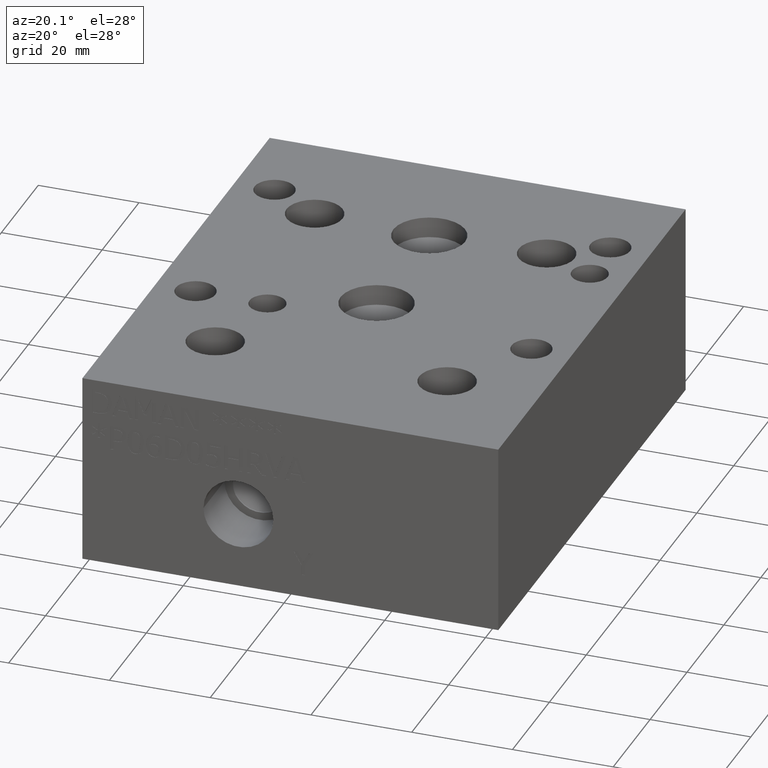
[diagram: clean part render]
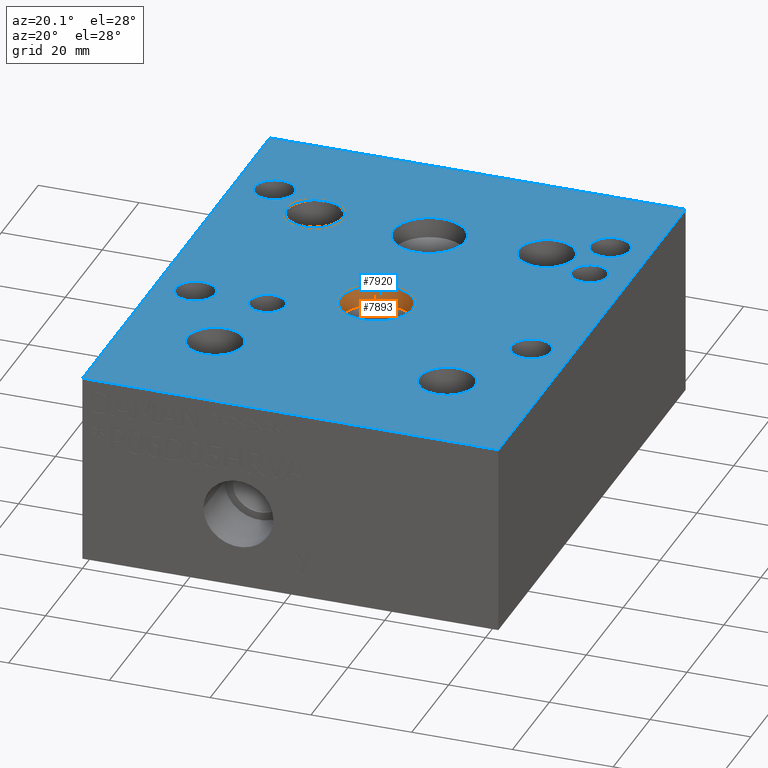
[diagram: same view with the hole feature highlighted: cylindrical wall and planar end face, labeled with their STEP entity ids]
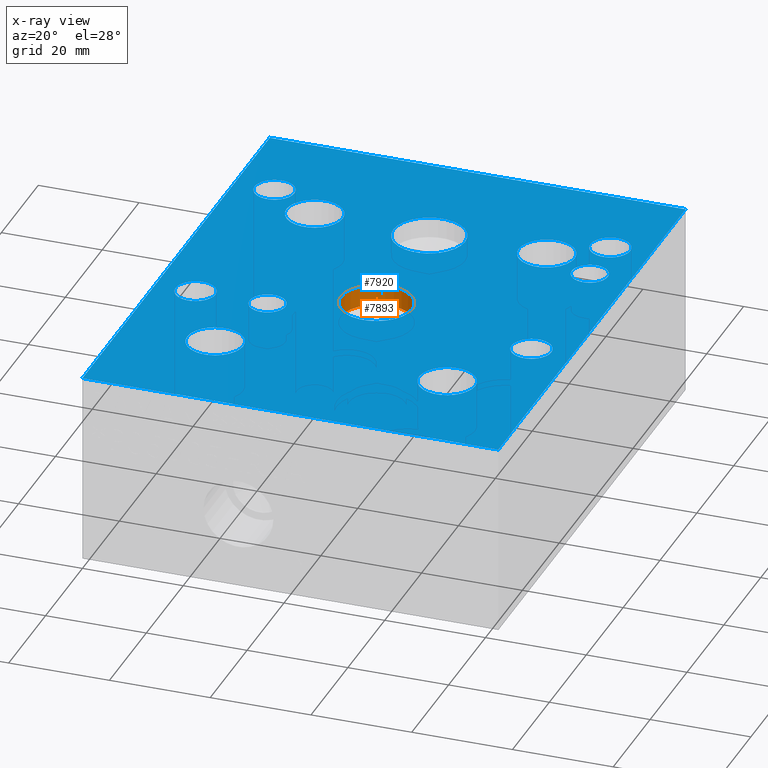
[diagram: x-ray of the same camera — body ghosted, the hole faces saturated]
A machine part, auxiliary view. The highlighted faces form one hole feature of diameter 14.2748 mm: the cylindrical wall (entity #7893, orange) and its adjacent planar end face (entity #7920, blue) — they share a circular edge in the B-rep.
The next image is the same camera in x-ray (body ghosted, the hole faces saturated) — the bore reads through the body.
Wall:
#746=CIRCLE('',#8291,7.1374);
#747=CIRCLE('',#8292,7.1374);
#748=CIRCLE('',#8294,7.1374);
#749=CIRCLE('',#8295,7.1374);
#811=CYLINDRICAL_SURFACE('',#8293,7.1374);
#1196=FACE_OUTER_BOUND('',#1648,.T.);
#1648=EDGE_LOOP('',(#7099,#7100,#7101,#7102,#7103,#7104));
#2459=LINE('',#13223,#3250);
#3250=VECTOR('',#9854,7.1374);
#3959=VERTEX_POINT('',#13212);
#3960=VERTEX_POINT('',#13213);
#3962=VERTEX_POINT('',#13219);
#3963=VERTEX_POINT('',#13220);
#5023=EDGE_CURVE('',#3959,#3960,#746,.T.);
#5025=EDGE_CURVE('',#3960,#3959,#747,.T.);
#5026=EDGE_CURVE('',#3962,#3963,#748,.T.);
#5027=EDGE_CURVE('',#3963,#3962,#749,.T.);
#5028=EDGE_CURVE('',#3963,#3960,#2459,.T.);
#7099=ORIENTED_EDGE('',*,*,#5026,.F.);
#7100=ORIENTED_EDGE('',*,*,#5027,.F.);
#7101=ORIENTED_EDGE('',*,*,#5028,.T.);
#7102=ORIENTED_EDGE('',*,*,#5023,.F.);
#7103=ORIENTED_EDGE('',*,*,#5025,.F.);
#7104=ORIENTED_EDGE('',*,*,#5028,.F.);
#7893=ADVANCED_FACE('',(#1196),#811,.F.);
#8291=AXIS2_PLACEMENT_3D('',#13214,#9843,#9844);
#8292=AXIS2_PLACEMENT_3D('',#13217,#9846,#9847);
#8293=AXIS2_PLACEMENT_3D('',#13218,#9848,#9849);
#8294=AXIS2_PLACEMENT_3D('',#13221,#9850,#9851);
#8295=AXIS2_PLACEMENT_3D('',#13222,#9852,#9853);
#9843=DIRECTION('center_axis',(0.,0.,1.));
#9844=DIRECTION('ref_axis',(1.,0.,0.));
#9846=DIRECTION('center_axis',(0.,0.,1.));
#9847=DIRECTION('ref_axis',(1.,0.,0.));
#9848=DIRECTION('center_axis',(0.,0.,1.));
#9849=DIRECTION('ref_axis',(1.,0.,0.));
#9850=DIRECTION('center_axis',(0.,0.,-1.));
#9851=DIRECTION('ref_axis',(1.,0.,0.));
#9852=DIRECTION('center_axis',(0.,0.,-1.));
#9853=DIRECTION('ref_axis',(1.,0.,0.));
#9854=DIRECTION('',(0.,0.,-1.));
#13212=CARTESIAN_POINT('',(48.387,46.8376,33.97922));
#13213=CARTESIAN_POINT('',(34.1122,46.8376,33.97922));
#13214=CARTESIAN_POINT('Origin',(41.2496,46.8376,33.97922));
#13217=CARTESIAN_POINT('Origin',(41.2496,46.8376,33.97922));
#13218=CARTESIAN_POINT('Origin',(41.2496,46.8376,36.03961));
#13219=CARTESIAN_POINT('',(48.387,46.8376,38.1));
#13220=CARTESIAN_POINT('',(34.1122,46.8376,38.1));
#13221=CARTESIAN_POINT('Origin',(41.2496,46.8376,38.1));
#13222=CARTESIAN_POINT('Origin',(41.2496,46.8376,38.1));
#13223=CARTESIAN_POINT('',(34.1122,46.8376,36.03961));
End face:
#664=FACE_BOUND('',#1680,.T.);
#665=FACE_BOUND('',#1681,.T.);
#666=FACE_BOUND('',#1682,.T.);
#667=FACE_BOUND('',#1683,.T.);
#668=FACE_BOUND('',#1684,.T.);
#669=FACE_BOUND('',#1685,.T.);
#670=FACE_BOUND('',#1686,.T.);
#671=FACE_BOUND('',#1687,.T.);
#672=FACE_BOUND('',#1688,.T.);
#673=FACE_BOUND('',#1689,.T.);
#674=FACE_BOUND('',#1690,.T.);
#675=FACE_BOUND('',#1691,.T.);
#711=CIRCLE('',#8228,5.5626);
#712=CIRCLE('',#8229,5.5626);
#716=CIRCLE('',#8235,5.5626);
#717=CIRCLE('',#8236,5.5626);
#721=CIRCLE('',#8243,5.5626);
#722=CIRCLE('',#8244,5.5626);
#726=CIRCLE('',#8251,5.5626);
#727=CIRCLE('',#8252,5.5626);
#748=CIRCLE('',#8294,7.1374);
#749=CIRCLE('',#8295,7.1374);
#752=CIRCLE('',#8300,7.1374);
#753=CIRCLE('',#8301,7.1374);
#756=CIRCLE('',#8306,3.5687);
#757=CIRCLE('',#8307,3.5687);
#760=CIRCLE('',#8312,3.5687);
#761=CIRCLE('',#8313,3.5687);
#767=CIRCLE('',#8322,3.9624);
#768=CIRCLE('',#8323,3.9624);
#774=CIRCLE('',#8333,3.9624);
#775=CIRCLE('',#8334,3.9624);
#781=CIRCLE('',#8344,3.9624);
#782=CIRCLE('',#8345,3.9624);
#788=CIRCLE('',#8355,3.9624);
#789=CIRCLE('',#8356,3.9624);
#1223=FACE_OUTER_BOUND('',#1679,.T.);
#1679=EDGE_LOOP('',(#7222,#7223,#7224,#7225));
#1680=EDGE_LOOP('',(#7226,#7227));
#1681=EDGE_LOOP('',(#7228,#7229));
#1682=EDGE_LOOP('',(#7230,#7231));
#1683=EDGE_LOOP('',(#7232,#7233));
#1684=EDGE_LOOP('',(#7234,#7235));
#1685=EDGE_LOOP('',(#7236,#7237));
#1686=EDGE_LOOP('',(#7238,#7239));
#1687=EDGE_LOOP('',(#7240,#7241));
#1688=EDGE_LOOP('',(#7242,#7243));
#1689=EDGE_LOOP('',(#7244,#7245));
#1690=EDGE_LOOP('',(#7246,#7247));
#1691=EDGE_LOOP('',(#7248,#7249));
#2030=LINE('',#12092,#2821);
#2478=LINE('',#13353,#3269);
#2480=LINE('',#13357,#3271);
#2482=LINE('',#13360,#3273);
#2821=VECTOR('',#8947,10.);
#3269=VECTOR('',#9999,10.);
#3271=VECTOR('',#10003,10.);
#3273=VECTOR('',#10007,10.);
#3627=VERTEX_POINT('',#12089);
#3628=VERTEX_POINT('',#12091);
#3922=VERTEX_POINT('',#13094);
#3923=VERTEX_POINT('',#13095);
#3927=VERTEX_POINT('',#13107);
#3928=VERTEX_POINT('',#13108);
#3932=VERTEX_POINT('',#13122);
#3933=VERTEX_POINT('',#13123);
#3937=VERTEX_POINT('',#13137);
#3938=VERTEX_POINT('',#13138);
#3962=VERTEX_POINT('',#13219);
#3963=VERTEX_POINT('',#13220);
#3967=VERTEX_POINT('',#13232);
#3968=VERTEX_POINT('',#13233);
#3972=VERTEX_POINT('',#13245);
#3973=VERTEX_POINT('',#13246);
#3977=VERTEX_POINT('',#13258);
#3978=VERTEX_POINT('',#13259);
#3985=VERTEX_POINT('',#13278);
#3986=VERTEX_POINT('',#13279);
#3993=VERTEX_POINT('',#13300);
#3994=VERTEX_POINT('',#13301);
#4001=VERTEX_POINT('',#13322);
#4002=VERTEX_POINT('',#13323);
#4009=VERTEX_POINT('',#13344);
#4010=VERTEX_POINT('',#13345);
#4011=VERTEX_POINT('',#13352);
#4012=VERTEX_POINT('',#13356);
#4532=EDGE_CURVE('',#3628,#3627,#2030,.T.);
#4970=EDGE_CURVE('',#3922,#3923,#711,.T.);
#4971=EDGE_CURVE('',#3923,#3922,#712,.T.);
#4976=EDGE_CURVE('',#3927,#3928,#716,.T.);
#4977=EDGE_CURVE('',#3928,#3927,#717,.T.);
#4983=EDGE_CURVE('',#3932,#3933,#721,.T.);
#4984=EDGE_CURVE('',#3933,#3932,#722,.T.);
#4990=EDGE_CURVE('',#3937,#3938,#726,.T.);
#4991=EDGE_CURVE('',#3938,#3937,#727,.T.);
#5026=EDGE_CURVE('',#3962,#3963,#748,.T.);
#5027=EDGE_CURVE('',#3963,#3962,#749,.T.);
#5032=EDGE_CURVE('',#3967,#3968,#752,.T.);
#5033=EDGE_CURVE('',#3968,#3967,#753,.T.);
#5038=EDGE_CURVE('',#3972,#3973,#756,.T.);
#5039=EDGE_CURVE('',#3973,#3972,#757,.T.);
#5044=EDGE_CURVE('',#3977,#3978,#760,.T.);
#5045=EDGE_CURVE('',#3978,#3977,#761,.T.);
#5053=EDGE_CURVE('',#3985,#3986,#767,.T.);
#5054=EDGE_CURVE('',#3986,#3985,#768,.T.);
#5063=EDGE_CURVE('',#3993,#3994,#774,.T.);
#5064=EDGE_CURVE('',#3994,#3993,#775,.T.);
#5073=EDGE_CURVE('',#4001,#4002,#781,.T.);
#5074=EDGE_CURVE('',#4002,#4001,#782,.T.);
#5083=EDGE_CURVE('',#4009,#4010,#788,.T.);
#5084=EDGE_CURVE('',#4010,#4009,#789,.T.);
#5087=EDGE_CURVE('',#4011,#3628,#2478,.T.);
#5089=EDGE_CURVE('',#4012,#4011,#2480,.T.);
#5091=EDGE_CURVE('',#3627,#4012,#2482,.T.);
#7222=ORIENTED_EDGE('',*,*,#4532,.T.);
#7223=ORIENTED_EDGE('',*,*,#5091,.T.);
#7224=ORIENTED_EDGE('',*,*,#5089,.T.);
#7225=ORIENTED_EDGE('',*,*,#5087,.T.);
#7226=ORIENTED_EDGE('',*,*,#4970,.T.);
#7227=ORIENTED_EDGE('',*,*,#4971,.T.);
#7228=ORIENTED_EDGE('',*,*,#4976,.T.);
#7229=ORIENTED_EDGE('',*,*,#4977,.T.);
#7230=ORIENTED_EDGE('',*,*,#4983,.T.);
#7231=ORIENTED_EDGE('',*,*,#4984,.T.);
#7232=ORIENTED_EDGE('',*,*,#4990,.T.);
#7233=ORIENTED_EDGE('',*,*,#4991,.T.);
#7234=ORIENTED_EDGE('',*,*,#5026,.T.);
#7235=ORIENTED_EDGE('',*,*,#5027,.T.);
#7236=ORIENTED_EDGE('',*,*,#5032,.T.);
#7237=ORIENTED_EDGE('',*,*,#5033,.T.);
#7238=ORIENTED_EDGE('',*,*,#5038,.T.);
#7239=ORIENTED_EDGE('',*,*,#5039,.T.);
#7240=ORIENTED_EDGE('',*,*,#5044,.T.);
#7241=ORIENTED_EDGE('',*,*,#5045,.T.);
#7242=ORIENTED_EDGE('',*,*,#5053,.T.);
#7243=ORIENTED_EDGE('',*,*,#5054,.T.);
#7244=ORIENTED_EDGE('',*,*,#5063,.T.);
#7245=ORIENTED_EDGE('',*,*,#5064,.T.);
#7246=ORIENTED_EDGE('',*,*,#5073,.T.);
#7247=ORIENTED_EDGE('',*,*,#5074,.T.);
#7248=ORIENTED_EDGE('',*,*,#5083,.T.);
#7249=ORIENTED_EDGE('',*,*,#5084,.T.);
#7519=PLANE('',#8362);
#7920=ADVANCED_FACE('',(#1223,#664,#665,#666,#667,#668,#669,#670,#671,#672,
#673,#674,#675),#7519,.T.);
#8228=AXIS2_PLACEMENT_3D('',#13096,#9699,#9700);
#8229=AXIS2_PLACEMENT_3D('',#13097,#9701,#9702);
#8235=AXIS2_PLACEMENT_3D('',#13109,#9714,#9715);
#8236=AXIS2_PLACEMENT_3D('',#13110,#9716,#9717);
#8243=AXIS2_PLACEMENT_3D('',#13124,#9732,#9733);
#8244=AXIS2_PLACEMENT_3D('',#13125,#9734,#9735);
#8251=AXIS2_PLACEMENT_3D('',#13139,#9750,#9751);
#8252=AXIS2_PLACEMENT_3D('',#13140,#9752,#9753);
#8294=AXIS2_PLACEMENT_3D('',#13221,#9850,#9851);
#8295=AXIS2_PLACEMENT_3D('',#13222,#9852,#9853);
#8300=AXIS2_PLACEMENT_3D('',#13234,#9864,#9865);
#8301=AXIS2_PLACEMENT_3D('',#13235,#9866,#9867);
#8306=AXIS2_PLACEMENT_3D('',#13247,#9878,#9879);
#8307=AXIS2_PLACEMENT_3D('',#13248,#9880,#9881);
#8312=AXIS2_PLACEMENT_3D('',#13260,#9892,#9893);
#8313=AXIS2_PLACEMENT_3D('',#13261,#9894,#9895);
#8322=AXIS2_PLACEMENT_3D('',#13280,#9914,#9915);
#8323=AXIS2_PLACEMENT_3D('',#13281,#9916,#9917);
#8333=AXIS2_PLACEMENT_3D('',#13302,#9939,#9940);
#8334=AXIS2_PLACEMENT_3D('',#13303,#9941,#9942);
#8344=AXIS2_PLACEMENT_3D('',#13324,#9964,#9965);
#8345=AXIS2_PLACEMENT_3D('',#13325,#9966,#9967);
#8355=AXIS2_PLACEMENT_3D('',#13346,#9989,#9990);
#8356=AXIS2_PLACEMENT_3D('',#13347,#9991,#9992);
#8362=AXIS2_PLACEMENT_3D('',#13362,#10010,#10011);
#8947=DIRECTION('',(1.,0.,0.));
#9699=DIRECTION('center_axis',(0.,0.,-1.));
#9700=DIRECTION('ref_axis',(1.,0.,0.));
#9701=DIRECTION('center_axis',(0.,0.,-1.));
#9702=DIRECTION('ref_axis',(1.,0.,0.));
#9714=DIRECTION('center_axis',(0.,0.,-1.));
#9715=DIRECTION('ref_axis',(1.,0.,0.));
#9716=DIRECTION('center_axis',(0.,0.,-1.));
#9717=DIRECTION('ref_axis',(1.,0.,0.));
#9732=DIRECTION('center_axis',(0.,0.,-1.));
#9733=DIRECTION('ref_axis',(1.,0.,0.));
#9734=DIRECTION('center_axis',(0.,0.,-1.));
#9735=DIRECTION('ref_axis',(1.,0.,0.));
#9750=DIRECTION('center_axis',(0.,0.,-1.));
#9751=DIRECTION('ref_axis',(1.,0.,0.));
#9752=DIRECTION('center_axis',(0.,0.,-1.));
#9753=DIRECTION('ref_axis',(1.,0.,0.));
#9850=DIRECTION('center_axis',(0.,0.,-1.));
#9851=DIRECTION('ref_axis',(1.,0.,0.));
#9852=DIRECTION('center_axis',(0.,0.,-1.));
#9853=DIRECTION('ref_axis',(1.,0.,0.));
#9864=DIRECTION('center_axis',(0.,0.,-1.));
#9865=DIRECTION('ref_axis',(1.,0.,0.));
#9866=DIRECTION('center_axis',(0.,0.,-1.));
#9867=DIRECTION('ref_axis',(1.,0.,0.));
#9878=DIRECTION('center_axis',(0.,0.,-1.));
#9879=DIRECTION('ref_axis',(1.,0.,0.));
#9880=DIRECTION('center_axis',(0.,0.,-1.));
#9881=DIRECTION('ref_axis',(1.,0.,0.));
#9892=DIRECTION('center_axis',(0.,0.,-1.));
#9893=DIRECTION('ref_axis',(1.,0.,0.));
#9894=DIRECTION('center_axis',(0.,0.,-1.));
#9895=DIRECTION('ref_axis',(1.,0.,0.));
#9914=DIRECTION('center_axis',(0.,0.,-1.));
#9915=DIRECTION('ref_axis',(1.,0.,0.));
#9916=DIRECTION('center_axis',(0.,0.,-1.));
#9917=DIRECTION('ref_axis',(1.,0.,0.));
#9939=DIRECTION('center_axis',(0.,0.,-1.));
#9940=DIRECTION('ref_axis',(1.,0.,0.));
#9941=DIRECTION('center_axis',(0.,0.,-1.));
#9942=DIRECTION('ref_axis',(1.,0.,0.));
#9964=DIRECTION('center_axis',(0.,0.,-1.));
#9965=DIRECTION('ref_axis',(1.,0.,0.));
#9966=DIRECTION('center_axis',(0.,0.,-1.));
#9967=DIRECTION('ref_axis',(1.,0.,0.));
#9989=DIRECTION('center_axis',(0.,0.,-1.));
#9990=DIRECTION('ref_axis',(1.,0.,0.));
#9991=DIRECTION('center_axis',(0.,0.,-1.));
#9992=DIRECTION('ref_axis',(1.,0.,0.));
#9999=DIRECTION('',(0.,-1.,0.));
#10003=DIRECTION('',(-1.,0.,0.));
#10007=DIRECTION('',(0.,1.,0.));
#10010=DIRECTION('center_axis',(0.,0.,1.));
#10011=DIRECTION('ref_axis',(1.,0.,0.));
#12089=CARTESIAN_POINT('',(82.55,0.,38.1));
#12091=CARTESIAN_POINT('',(0.,0.,38.1));
#12092=CARTESIAN_POINT('',(0.,0.,38.1));
#13094=CARTESIAN_POINT('',(69.8246,76.2127,38.1));
#13095=CARTESIAN_POINT('',(58.6994,76.2127,38.1));
#13096=CARTESIAN_POINT('Origin',(64.262,76.2127,38.1));
#13097=CARTESIAN_POINT('Origin',(64.262,76.2127,38.1));
#13107=CARTESIAN_POINT('',(23.7744,76.2,38.1));
#13108=CARTESIAN_POINT('',(12.6492,76.2,38.1));
#13109=CARTESIAN_POINT('Origin',(18.2118,76.2,38.1));
#13110=CARTESIAN_POINT('Origin',(18.2118,76.2,38.1));
#13122=CARTESIAN_POINT('',(23.7871,22.2377,38.1));
#13123=CARTESIAN_POINT('',(12.6619,22.2377,38.1));
#13124=CARTESIAN_POINT('Origin',(18.2245,22.2377,38.1));
#13125=CARTESIAN_POINT('Origin',(18.2245,22.2377,38.1));
#13137=CARTESIAN_POINT('',(69.8246,22.2377,38.1));
#13138=CARTESIAN_POINT('',(58.6994,22.2377,38.1));
#13139=CARTESIAN_POINT('Origin',(64.262,22.2377,38.1));
#13140=CARTESIAN_POINT('Origin',(64.262,22.2377,38.1));
#13219=CARTESIAN_POINT('',(48.387,46.8376,38.1));
#13220=CARTESIAN_POINT('',(34.1122,46.8376,38.1));
#13221=CARTESIAN_POINT('Origin',(41.2496,46.8376,38.1));
#13222=CARTESIAN_POINT('Origin',(41.2496,46.8376,38.1));
#13232=CARTESIAN_POINT('',(48.387,75.4126,38.1));
#13233=CARTESIAN_POINT('',(34.1122,75.4126,38.1));
#13234=CARTESIAN_POINT('Origin',(41.2496,75.4126,38.1));
#13235=CARTESIAN_POINT('Origin',(41.2496,75.4126,38.1));
#13245=CARTESIAN_POINT('',(25.7683,39.7002,38.1));
#13246=CARTESIAN_POINT('',(18.6309,39.7002,38.1));
#13247=CARTESIAN_POINT('Origin',(22.1996,39.7002,38.1));
#13248=CARTESIAN_POINT('Origin',(22.1996,39.7002,38.1));
#13258=CARTESIAN_POINT('',(78.1431,71.4248,38.1));
#13259=CARTESIAN_POINT('',(71.0057,71.4248,38.1));
#13260=CARTESIAN_POINT('Origin',(74.5744,71.4248,38.1));
#13261=CARTESIAN_POINT('Origin',(74.5744,71.4248,38.1));
#13278=CARTESIAN_POINT('',(78.5622,39.7002,38.1));
#13279=CARTESIAN_POINT('',(70.6374,39.7002,38.1));
#13280=CARTESIAN_POINT('Origin',(74.5998,39.7002,38.1));
#13281=CARTESIAN_POINT('Origin',(74.5998,39.7002,38.1));
#13300=CARTESIAN_POINT('',(11.8872,82.55,38.1));
#13301=CARTESIAN_POINT('',(3.9624,82.55,38.1));
#13302=CARTESIAN_POINT('Origin',(7.9248,82.55,38.1));
#13303=CARTESIAN_POINT('Origin',(7.9248,82.55,38.1));
#13322=CARTESIAN_POINT('',(78.5368,82.55,38.1));
#13323=CARTESIAN_POINT('',(70.612,82.55,38.1));
#13324=CARTESIAN_POINT('Origin',(74.5744,82.55,38.1));
#13325=CARTESIAN_POINT('Origin',(74.5744,82.55,38.1));
#13344=CARTESIAN_POINT('',(11.8872,39.7002,38.1));
#13345=CARTESIAN_POINT('',(3.9624,39.7002,38.1));
#13346=CARTESIAN_POINT('Origin',(7.9248,39.7002,38.1));
#13347=CARTESIAN_POINT('Origin',(7.9248,39.7002,38.1));
#13352=CARTESIAN_POINT('',(0.,101.6,38.1));
#13353=CARTESIAN_POINT('',(0.,101.6,38.1));
#13356=CARTESIAN_POINT('',(82.55,101.6,38.1));
#13357=CARTESIAN_POINT('',(82.55,101.6,38.1));
#13360=CARTESIAN_POINT('',(82.55,0.,38.1));
#13362=CARTESIAN_POINT('Origin',(41.275,50.8,38.1));